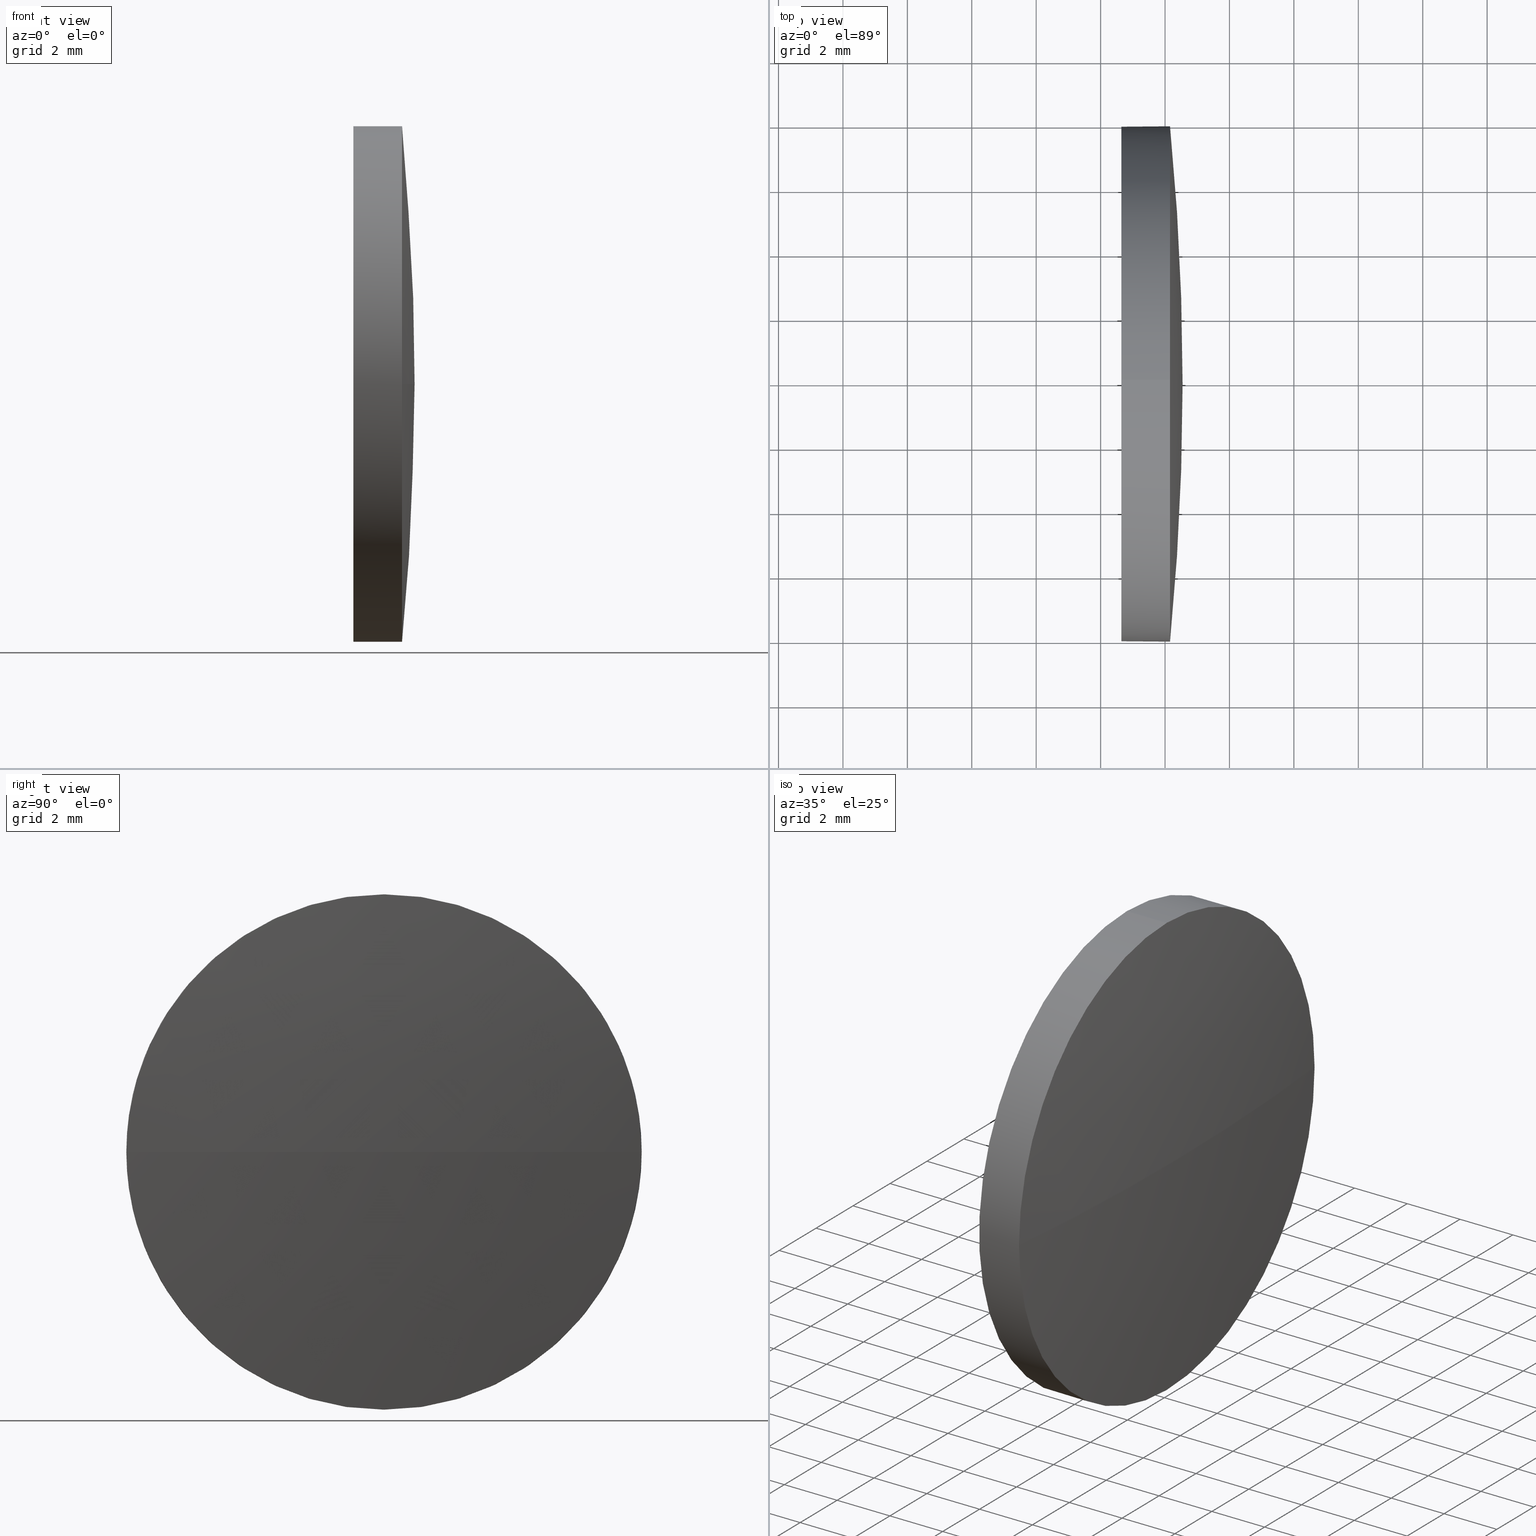
[diagram: canonical four-view strip — front | top / right | iso, engineering-drawing reading convention]
A machine part, canonical four-view strip (front | top / right | iso — engineering-drawing reading convention). The complete STEP part file that produces these views, byte-faithful:
ISO-10303-21;
HEADER;
FILE_DESCRIPTION (( 'STEP AP214' ),
    '1' );
FILE_NAME ('100119.STEP',
    '2019-05-14T05:32:01',
    ( '' ),
    ( '' ),
    'SwSTEP 2.0',
    'SolidWorks 2016',
    '' );
FILE_SCHEMA (( 'AUTOMOTIVE_DESIGN' ));
ENDSEC;

DATA;
#1 = MECHANICAL_DESIGN_GEOMETRIC_PRESENTATION_REPRESENTATION (  '', ( #158 ), #96 ) ;
#2 = CARTESIAN_POINT ( 'NONE',  ( 442.5452059022057900, 159.9103429002040300, 0.0000000000000000000 ) ) ;
#3 = CARTESIAN_POINT ( 'NONE',  ( 360.2989238509231900, 159.9103429002040300, 0.0000000000000000000 ) ) ;
#4 = ORIENTED_EDGE ( 'NONE', *, *, #20, .F. ) ;
#5 =( NAMED_UNIT ( * ) SI_UNIT ( $, .STERADIAN. ) SOLID_ANGLE_UNIT ( ) );
#6 = EDGE_CURVE ( 'NONE', #128, #19, #161, .T. ) ;
#7 = LINE ( 'NONE', #89, #82 ) ;
#8 = AXIS2_PLACEMENT_3D ( 'NONE', #74, #105, #171 ) ;
#9 =( LENGTH_UNIT ( ) NAMED_UNIT ( * ) SI_UNIT ( .MILLI., .METRE. ) );
#10 = PRODUCT_DEFINITION_SHAPE ( 'NONE', 'NONE',  #26 ) ;
#11 = AXIS2_PLACEMENT_3D ( 'NONE', #25, #160, #66 ) ;
#12 = ORIENTED_EDGE ( 'NONE', *, *, #63, .T. ) ;
#13 = SURFACE_STYLE_USAGE ( .BOTH. , #142 ) ;
#14 = STYLED_ITEM ( 'NONE', ( #55 ), #167 ) ;
#15 = SURFACE_STYLE_FILL_AREA ( #81 ) ;
#16 = AXIS2_PLACEMENT_3D ( 'NONE', #22, #176, #151 ) ;
#17 = ORIENTED_EDGE ( 'NONE', *, *, #77, .F. ) ;
#18 = CARTESIAN_POINT ( 'NONE',  ( 442.1552059022058100, 159.9103429002037700, 0.0000000000000000000 ) ) ;
#19 = VERTEX_POINT ( 'NONE', #88 ) ;
#20 = EDGE_CURVE ( 'NONE', #19, #143, #73, .T. ) ;
#21 = DIRECTION ( 'NONE',  ( -1.000000000000000000, -0.0000000000000000000, -0.0000000000000000000 ) ) ;
#22 = CARTESIAN_POINT ( 'NONE',  ( 360.2989238509231900, 159.9103429002040300, 0.0000000000000000000 ) ) ;
#23 = CARTESIAN_POINT ( 'NONE',  ( 440.6452059022058700, 159.9103429002037700, 7.999999999999979600 ) ) ;
#24 = ORIENTED_EDGE ( 'NONE', *, *, #43, .F. ) ;
#25 = CARTESIAN_POINT ( 'NONE',  ( 438.7223891973601400, 159.9103429002037700, 0.0000000000000000000 ) ) ;
#26 = PRODUCT_DEFINITION ( 'δ֪', '', #169, #54 ) ;
#27 = DIRECTION ( 'NONE',  ( 1.000000000000000000, 0.0000000000000000000, 0.0000000000000000000 ) ) ;
#28 = UNCERTAINTY_MEASURE_WITH_UNIT (LENGTH_MEASURE( 1.000000000000000100E-005 ), #9, 'distance_accuracy_value', 'NONE');
#29 = PRESENTATION_LAYER_ASSIGNMENT (  '', '', ( #14 ) ) ;
#30 = COLOUR_RGB ( '',1.000000000000000000, 1.000000000000000000, 1.000000000000000000 ) ;
#31 = ORIENTED_EDGE ( 'NONE', *, *, #77, .T. ) ;
#32 = VECTOR ( 'NONE', #64, 1000.000000000000000 ) ;
#33 = DIRECTION ( 'NONE',  ( -1.000000000000000000, -0.0000000000000000000, -0.0000000000000000000 ) ) ;
#34 = DIRECTION ( 'NONE',  ( 0.0000000000000000000, 0.0000000000000000000, 1.000000000000000000 ) ) ;
#35 = DIRECTION ( 'NONE',  ( 0.0000000000000000000, 0.0000000000000000000, 1.000000000000000000 ) ) ;
#36 = PLANE ( 'NONE',  #56 ) ;
#37 = AXIS2_PLACEMENT_3D ( 'NONE', #3, #109, #148 ) ;
#38 = FACE_OUTER_BOUND ( 'NONE', #98, .T. ) ;
#39 = CARTESIAN_POINT ( 'NONE',  ( 0.0000000000000000000, 0.0000000000000000000, 0.0000000000000000000 ) ) ;
#40 = ADVANCED_BREP_SHAPE_REPRESENTATION ( '100119', ( #167, #104 ), #185 ) ;
#41 = DIRECTION ( 'NONE',  ( -1.000000000000000000, -0.0000000000000000000, -0.0000000000000000000 ) ) ;
#42 = CIRCLE ( 'NONE', #16, 82.24628205128257700 ) ;
#43 = EDGE_CURVE ( 'NONE', #141, #108, #65, .T. ) ;
#44 = ADVANCED_FACE ( 'NONE', ( #38 ), #168, .T. ) ;
#45 = FACE_OUTER_BOUND ( 'NONE', #61, .T. ) ;
#46 = ORIENTED_EDGE ( 'NONE', *, *, #117, .T. ) ;
#47 = DIRECTION ( 'NONE',  ( 0.0000000000000000000, 0.0000000000000000000, 1.000000000000000000 ) ) ;
#48 = ORIENTED_EDGE ( 'NONE', *, *, #60, .F. ) ;
#49 = PRESENTATION_LAYER_ASSIGNMENT (  '', '', ( #158 ) ) ;
#50 = CARTESIAN_POINT ( 'NONE',  ( 442.1552059022058100, 159.9103429002037700, 0.0000000000000000000 ) ) ;
#51 = EDGE_CURVE ( 'NONE', #143, #80, #175, .T. ) ;
#52 = DIRECTION ( 'NONE',  ( -1.000000000000000000, -0.0000000000000000000, -0.0000000000000000000 ) ) ;
#53 = CARTESIAN_POINT ( 'NONE',  ( 440.6452059022058700, 159.9103429002037700, 0.0000000000000000000 ) ) ;
#54 = PRODUCT_DEFINITION_CONTEXT ( 'detailed design', #127, 'design' ) ;
#55 = PRESENTATION_STYLE_ASSIGNMENT (( #137 ) ) ;
#56 = AXIS2_PLACEMENT_3D ( 'NONE', #53, #107, #135 ) ;
#57 = EDGE_LOOP ( 'NONE', ( #163, #68 ) ) ;
#58 = ORIENTED_EDGE ( 'NONE', *, *, #173, .T. ) ;
#59 = AXIS2_PLACEMENT_3D ( 'NONE', #144, #131, #47 ) ;
#60 = EDGE_CURVE ( 'NONE', #108, #141, #147, .T. ) ;
#61 = EDGE_LOOP ( 'NONE', ( #71, #58, #114, #46, #48 ) ) ;
#62 = FILL_AREA_STYLE_COLOUR ( '', #113 ) ;
#63 = EDGE_CURVE ( 'NONE', #80, #87, #165, .T. ) ;
#64 = DIRECTION ( 'NONE',  ( -1.000000000000000000, -0.0000000000000000000, -0.0000000000000000000 ) ) ;
#65 = CIRCLE ( 'NONE', #59, 7.999999999999979600 ) ;
#66 = DIRECTION ( 'NONE',  ( 0.0000000000000000000, 0.0000000000000000000, 1.000000000000000000 ) ) ;
#67 = PRODUCT_RELATED_PRODUCT_CATEGORY ( 'part', '', ( #155 ) ) ;
#68 = ORIENTED_EDGE ( 'NONE', *, *, #60, .T. ) ;
#69 = APPLICATION_PROTOCOL_DEFINITION ( 'draft international standard', 'automotive_design', 1998, #127 ) ;
#70 = LINE ( 'NONE', #120, #32 ) ;
#71 = ORIENTED_EDGE ( 'NONE', *, *, #164, .F. ) ;
#72 = PRESENTATION_STYLE_ASSIGNMENT (( #13 ) ) ;
#73 = CIRCLE ( 'NONE', #8, 7.999999999999979600 ) ;
#74 = CARTESIAN_POINT ( 'NONE',  ( 442.1552059022058100, 159.9103429002037700, 0.0000000000000000000 ) ) ;
#75 = DIRECTION ( 'NONE',  ( 0.0000000000000000000, 0.0000000000000000000, 1.000000000000000000 ) ) ;
#76 = SURFACE_SIDE_STYLE ('',( #129 ) ) ;
#77 = EDGE_CURVE ( 'NONE', #128, #80, #42, .T. ) ;
#78 = CARTESIAN_POINT ( 'NONE',  ( 442.1552059022058100, 159.9103429002037700, 0.0000000000000000000 ) ) ;
#79 = DIRECTION ( 'NONE',  ( 0.0000000000000000000, 0.0000000000000000000, 1.000000000000000000 ) ) ;
#80 = VERTEX_POINT ( 'NONE', #125 ) ;
#81 = FILL_AREA_STYLE ('',( #112 ) ) ;
#82 = VECTOR ( 'NONE', #159, 1000.000000000000000 ) ;
#83 = DIRECTION ( 'NONE',  ( 0.0000000000000000000, 0.0000000000000000000, 1.000000000000000000 ) ) ;
#84 = AXIS2_PLACEMENT_3D ( 'NONE', #18, #186, #34 ) ;
#85 = DIRECTION ( 'NONE',  ( 0.0000000000000000000, 0.0000000000000000000, 1.000000000000000000 ) ) ;
#86 = CARTESIAN_POINT ( 'NONE',  ( 442.1552059022058100, 159.9103429002037700, -7.999999999999979600 ) ) ;
#87 = VERTEX_POINT ( 'NONE', #86 ) ;
#88 = CARTESIAN_POINT ( 'NONE',  ( 442.1552059022058100, 151.9103429002039400, 0.0000000000000000000 ) ) ;
#89 = CARTESIAN_POINT ( 'NONE',  ( 438.7223891973601400, 159.9103429002037700, -7.999999999999979600 ) ) ;
#90 =( LENGTH_UNIT ( ) NAMED_UNIT ( * ) SI_UNIT ( .MILLI., .METRE. ) );
#91 = ADVANCED_FACE ( 'NONE', ( #183 ), #139, .T. ) ;
#92 = CARTESIAN_POINT ( 'NONE',  ( 440.6452059022058700, 159.9103429002037700, -7.999999999999979600 ) ) ;
#93 = FACE_OUTER_BOUND ( 'NONE', #100, .T. ) ;
#94 =( NAMED_UNIT ( * ) PLANE_ANGLE_UNIT ( ) SI_UNIT ( $, .RADIAN. ) );
#95 = PRODUCT_CONTEXT ( 'NONE', #179, 'mechanical' ) ;
#96 =( GEOMETRIC_REPRESENTATION_CONTEXT ( 3 ) GLOBAL_UNCERTAINTY_ASSIGNED_CONTEXT ( ( #28 ) ) GLOBAL_UNIT_ASSIGNED_CONTEXT ( ( #9, #153, #115 ) ) REPRESENTATION_CONTEXT ( 'NONE', 'WORKASPACE' ) );
#97 = CIRCLE ( 'NONE', #140, 7.999999999999979600 ) ;
#98 = EDGE_LOOP ( 'NONE', ( #12, #133, #24, #152, #130 ) ) ;
#99 = ORIENTED_EDGE ( 'NONE', *, *, #51, .F. ) ;
#100 = EDGE_LOOP ( 'NONE', ( #157, #31, #99, #4 ) ) ;
#101 = UNCERTAINTY_MEASURE_WITH_UNIT (LENGTH_MEASURE( 1.000000000000000100E-005 ), #178, 'distance_accuracy_value', 'NONE');
#102 = CARTESIAN_POINT ( 'NONE',  ( 438.7223891973601400, 159.9103429002037700, 0.0000000000000000000 ) ) ;
#103 = ORIENTED_EDGE ( 'NONE', *, *, #173, .F. ) ;
#104 = AXIS2_PLACEMENT_3D ( 'NONE', #39, #83, #27 ) ;
#105 = DIRECTION ( 'NONE',  ( -1.000000000000000000, -0.0000000000000000000, -0.0000000000000000000 ) ) ;
#106 = CARTESIAN_POINT ( 'NONE',  ( 440.6452059022058700, 159.9103429002037700, 0.0000000000000000000 ) ) ;
#107 = DIRECTION ( 'NONE',  ( 1.000000000000000000, 0.0000000000000000000, 0.0000000000000000000 ) ) ;
#108 = VERTEX_POINT ( 'NONE', #92 ) ;
#109 = DIRECTION ( 'NONE',  ( 0.0000000000000000000, 0.0000000000000000000, 1.000000000000000000 ) ) ;
#110 =( NAMED_UNIT ( * ) SI_UNIT ( $, .STERADIAN. ) SOLID_ANGLE_UNIT ( ) );
#111 = UNCERTAINTY_MEASURE_WITH_UNIT (LENGTH_MEASURE( 1.000000000000000100E-005 ), #90, 'distance_accuracy_value', 'NONE');
#112 = FILL_AREA_STYLE_COLOUR ( '', #30 ) ;
#113 = COLOUR_RGB ( '',1.000000000000000000, 1.000000000000000000, 1.000000000000000000 ) ;
#114 = ORIENTED_EDGE ( 'NONE', *, *, #20, .T. ) ;
#115 =( NAMED_UNIT ( * ) SI_UNIT ( $, .STERADIAN. ) SOLID_ANGLE_UNIT ( ) );
#116 = EDGE_LOOP ( 'NONE', ( #17, #166, #103, #124 ) ) ;
#117 = EDGE_CURVE ( 'NONE', #143, #141, #70, .T. ) ;
#118 = DIRECTION ( 'NONE',  ( -1.000000000000000000, 0.0000000000000000000, 0.0000000000000000000 ) ) ;
#119 = DIRECTION ( 'NONE',  ( 0.0000000000000000000, 0.0000000000000000000, -1.000000000000000000 ) ) ;
#120 = CARTESIAN_POINT ( 'NONE',  ( 438.7223891973601400, 159.9103429002037700, 7.999999999999979600 ) ) ;
#121 =( NAMED_UNIT ( * ) PLANE_ANGLE_UNIT ( ) SI_UNIT ( $, .RADIAN. ) );
#122 = CARTESIAN_POINT ( 'NONE',  ( 442.1552059022058100, 159.9103429002037700, 7.999999999999979600 ) ) ;
#123 = SPHERICAL_SURFACE ( 'NONE', #182, 82.24628205128257700 ) ;
#124 = ORIENTED_EDGE ( 'NONE', *, *, #63, .F. ) ;
#125 = CARTESIAN_POINT ( 'NONE',  ( 442.1552059022058100, 167.9103429002038600, 9.797174393178616600E-016 ) ) ;
#126 = AXIS2_PLACEMENT_3D ( 'NONE', #106, #21, #35 ) ;
#127 = APPLICATION_CONTEXT ( 'automotive_design' ) ;
#128 = VERTEX_POINT ( 'NONE', #2 ) ;
#129 = SURFACE_STYLE_FILL_AREA ( #138 ) ;
#130 = ORIENTED_EDGE ( 'NONE', *, *, #51, .T. ) ;
#131 = DIRECTION ( 'NONE',  ( -1.000000000000000000, -0.0000000000000000000, -0.0000000000000000000 ) ) ;
#132 = CARTESIAN_POINT ( 'NONE',  ( 360.2989238509231900, 159.9103429002040300, 0.0000000000000000000 ) ) ;
#133 = ORIENTED_EDGE ( 'NONE', *, *, #164, .T. ) ;
#134 = AXIS2_PLACEMENT_3D ( 'NONE', #102, #33, #85 ) ;
#135 = DIRECTION ( 'NONE',  ( 0.0000000000000000000, 0.0000000000000000000, -1.000000000000000000 ) ) ;
#136 = ADVANCED_FACE ( 'NONE', ( #174 ), #36, .F. ) ;
#137 = SURFACE_STYLE_USAGE ( .BOTH. , #76 ) ;
#138 = FILL_AREA_STYLE ('',( #62 ) ) ;
#139 = SPHERICAL_SURFACE ( 'NONE', #37, 82.24628205128257700 ) ;
#140 = AXIS2_PLACEMENT_3D ( 'NONE', #78, #52, #79 ) ;
#141 = VERTEX_POINT ( 'NONE', #23 ) ;
#142 = SURFACE_SIDE_STYLE ('',( #15 ) ) ;
#143 = VERTEX_POINT ( 'NONE', #122 ) ;
#144 = CARTESIAN_POINT ( 'NONE',  ( 440.6452059022058700, 159.9103429002037700, 0.0000000000000000000 ) ) ;
#145 = MECHANICAL_DESIGN_GEOMETRIC_PRESENTATION_REPRESENTATION (  '', ( #14 ), #156 ) ;
#146 = CYLINDRICAL_SURFACE ( 'NONE', #11, 7.999999999999979600 ) ;
#147 = CIRCLE ( 'NONE', #126, 7.999999999999979600 ) ;
#148 = DIRECTION ( 'NONE',  ( 0.0000000000000000000, -1.000000000000000000, 0.0000000000000000000 ) ) ;
#149 = DIRECTION ( 'NONE',  ( 0.0000000000000000000, -1.000000000000000000, 0.0000000000000000000 ) ) ;
#150 = ADVANCED_FACE ( 'NONE', ( #45 ), #146, .T. ) ;
#151 = DIRECTION ( 'NONE',  ( 0.0000000000000000000, -1.000000000000000000, -1.224646799147353200E-016 ) ) ;
#152 = ORIENTED_EDGE ( 'NONE', *, *, #117, .F. ) ;
#153 =( NAMED_UNIT ( * ) PLANE_ANGLE_UNIT ( ) SI_UNIT ( $, .RADIAN. ) );
#154 = SHAPE_DEFINITION_REPRESENTATION ( #10, #40 ) ;
#155 = PRODUCT ( '100119', '100119', '', ( #95 ) ) ;
#156 =( GEOMETRIC_REPRESENTATION_CONTEXT ( 3 ) GLOBAL_UNCERTAINTY_ASSIGNED_CONTEXT ( ( #101 ) ) GLOBAL_UNIT_ASSIGNED_CONTEXT ( ( #178, #94, #5 ) ) REPRESENTATION_CONTEXT ( 'NONE', 'WORKASPACE' ) );
#157 = ORIENTED_EDGE ( 'NONE', *, *, #6, .F. ) ;
#158 = STYLED_ITEM ( 'NONE', ( #72 ), #40 ) ;
#159 = DIRECTION ( 'NONE',  ( -1.000000000000000000, -0.0000000000000000000, -0.0000000000000000000 ) ) ;
#160 = DIRECTION ( 'NONE',  ( -1.000000000000000000, -0.0000000000000000000, -0.0000000000000000000 ) ) ;
#161 = CIRCLE ( 'NONE', #184, 82.24628205128259100 ) ;
#162 = ADVANCED_FACE ( 'NONE', ( #93 ), #123, .T. ) ;
#163 = ORIENTED_EDGE ( 'NONE', *, *, #43, .T. ) ;
#164 = EDGE_CURVE ( 'NONE', #87, #108, #7, .T. ) ;
#165 = CIRCLE ( 'NONE', #181, 7.999999999999979600 ) ;
#166 = ORIENTED_EDGE ( 'NONE', *, *, #6, .T. ) ;
#167 = MANIFOLD_SOLID_BREP ( '��ת1', #170 ) ;
#168 = CYLINDRICAL_SURFACE ( 'NONE', #134, 7.999999999999979600 ) ;
#169 = PRODUCT_DEFINITION_FORMATION_WITH_SPECIFIED_SOURCE ( '�κ�', '', #155, .NOT_KNOWN. ) ;
#170 = CLOSED_SHELL ( 'NONE', ( #44, #162, #91, #150, #136 ) ) ;
#171 = DIRECTION ( 'NONE',  ( 0.0000000000000000000, 0.0000000000000000000, 1.000000000000000000 ) ) ;
#172 = DIRECTION ( 'NONE',  ( 0.0000000000000000000, 0.0000000000000000000, 1.000000000000000000 ) ) ;
#173 = EDGE_CURVE ( 'NONE', #87, #19, #97, .T. ) ;
#174 = FACE_OUTER_BOUND ( 'NONE', #57, .T. ) ;
#175 = CIRCLE ( 'NONE', #84, 7.999999999999979600 ) ;
#176 = DIRECTION ( 'NONE',  ( 0.0000000000000000000, -1.224646799147353200E-016, 1.000000000000000000 ) ) ;
#177 = CARTESIAN_POINT ( 'NONE',  ( 360.2989238509231900, 159.9103429002040300, 0.0000000000000000000 ) ) ;
#178 =( LENGTH_UNIT ( ) NAMED_UNIT ( * ) SI_UNIT ( .MILLI., .METRE. ) );
#179 = APPLICATION_CONTEXT ( 'automotive_design' ) ;
#180 = APPLICATION_PROTOCOL_DEFINITION ( 'draft international standard', 'automotive_design', 1998, #179 ) ;
#181 = AXIS2_PLACEMENT_3D ( 'NONE', #50, #41, #75 ) ;
#182 = AXIS2_PLACEMENT_3D ( 'NONE', #177, #172, #149 ) ;
#183 = FACE_OUTER_BOUND ( 'NONE', #116, .T. ) ;
#184 = AXIS2_PLACEMENT_3D ( 'NONE', #132, #119, #118 ) ;
#185 =( GEOMETRIC_REPRESENTATION_CONTEXT ( 3 ) GLOBAL_UNCERTAINTY_ASSIGNED_CONTEXT ( ( #111 ) ) GLOBAL_UNIT_ASSIGNED_CONTEXT ( ( #90, #121, #110 ) ) REPRESENTATION_CONTEXT ( 'NONE', 'WORKASPACE' ) );
#186 = DIRECTION ( 'NONE',  ( -1.000000000000000000, -0.0000000000000000000, -0.0000000000000000000 ) ) ;
ENDSEC;
END-ISO-10303-21;
